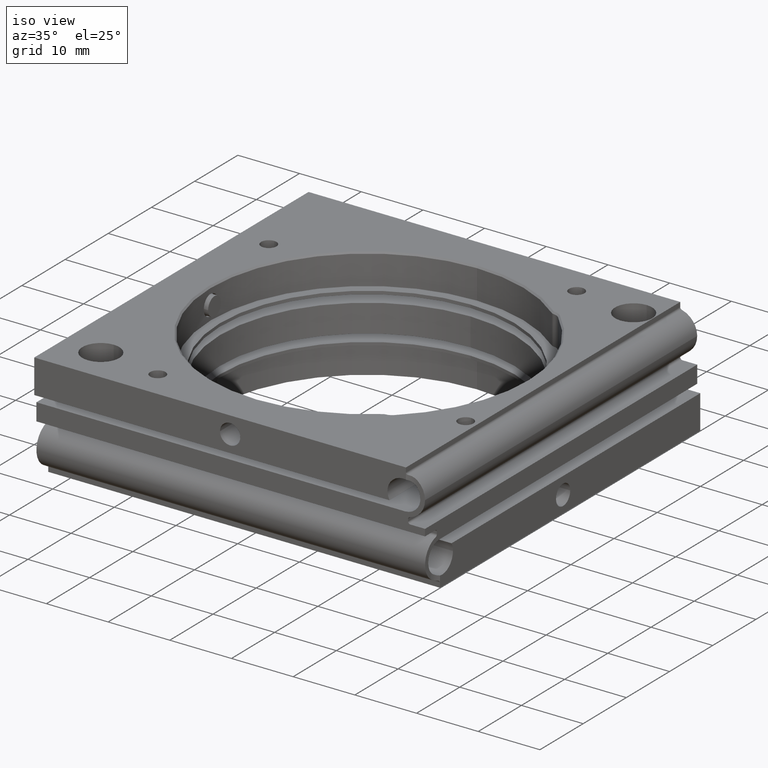
[diagram: clean part render]
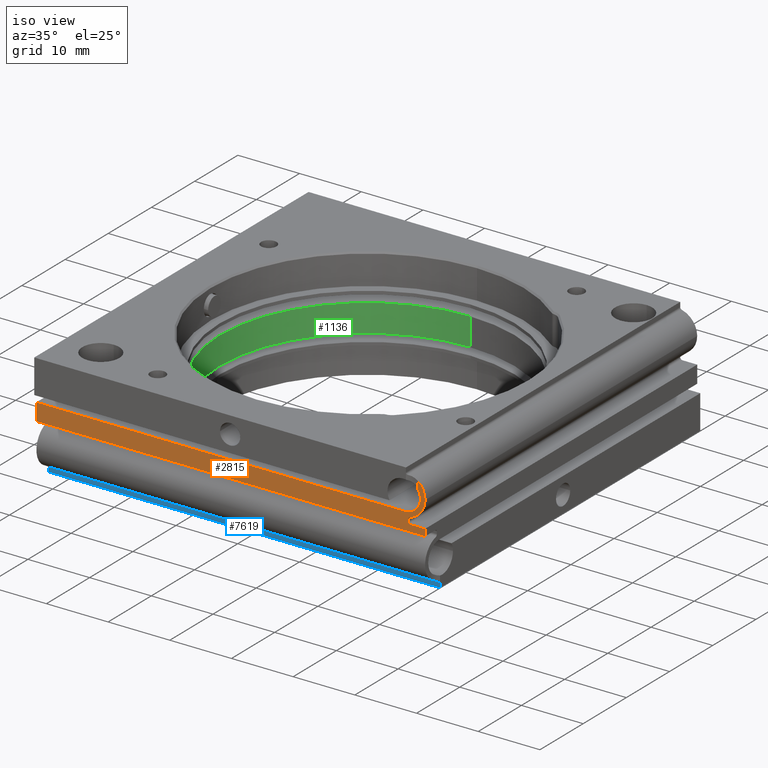
[diagram: same view with three faces highlighted in distinct colors, each labeled with its STEP entity id]
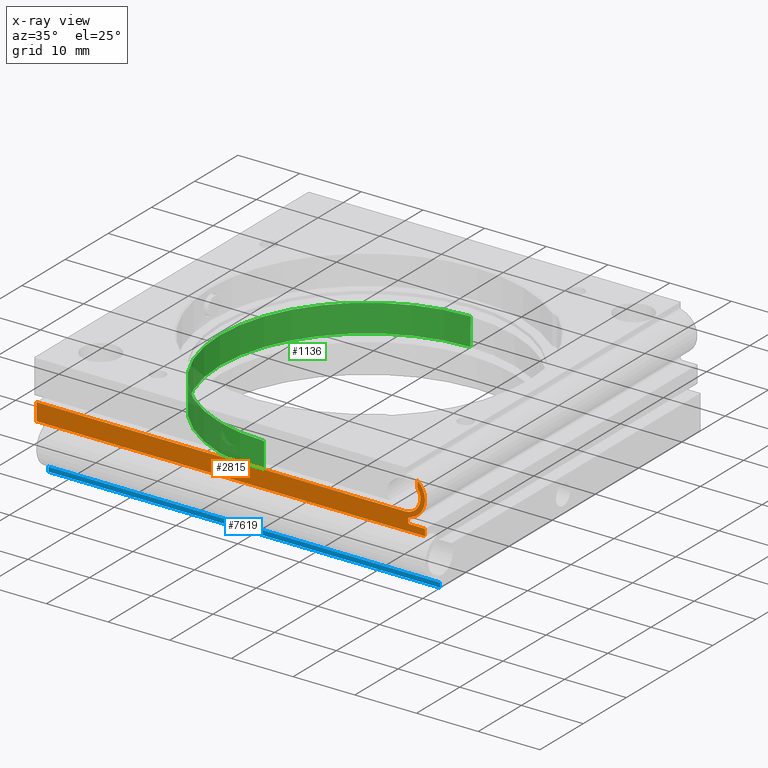
[diagram: x-ray of the same camera — body ghosted, the three highlighted faces saturated]
A machine part, iso view with three faces highlighted in distinct colors.
The next image is the same camera in x-ray (body ghosted, the three faces saturated) — at least one of them is partly hidden behind the body in this view.
Their STEP definitions:

[orange] entity #2815 — the highlighted planar face has unit normal (0, 1, 0).
#16 = DIRECTION ( 'NONE',  ( -1.000000000000000000, 1.665334536937734811E-16, 0.000000000000000000 ) ) ;
#143 = CARTESIAN_POINT ( 'NONE',  ( 28.85000000000001918, -31.24999999999998579, 0.8999999999999998002 ) ) ;
#270 = EDGE_CURVE ( 'NONE', #3364, #8082, #5874, .T. ) ;
#397 = VERTEX_POINT ( 'NONE', #4612 ) ;
#479 = ORIENTED_EDGE ( 'NONE', *, *, #9227, .F. ) ;
#482 = DIRECTION ( 'NONE',  ( 3.835514583104628497E-17, -1.000000000000000000, 5.551115123125782086E-17 ) ) ;
#670 = EDGE_CURVE ( 'NONE', #6175, #3364, #9756, .T. ) ;
#728 = VERTEX_POINT ( 'NONE', #2237 ) ;
#771 = VECTOR ( 'NONE', #3716, 1000.000000000000000 ) ;
#961 = CARTESIAN_POINT ( 'NONE',  ( -31.75000000000000711, -31.24999999999999289, 8.999999999999998224 ) ) ;
#969 = EDGE_CURVE ( 'NONE', #4498, #397, #7934, .T. ) ;
#978 = AXIS2_PLACEMENT_3D ( 'NONE', #6740, #9114, #9913 ) ;
#1087 = CARTESIAN_POINT ( 'NONE',  ( 28.76736111111112493, -31.24999999999998579, 1.591890292413147279 ) ) ;
#1276 = ORIENTED_EDGE ( 'NONE', *, *, #670, .T. ) ;
#1315 = ORIENTED_EDGE ( 'NONE', *, *, #969, .T. ) ;
#1316 = CARTESIAN_POINT ( 'NONE',  ( 28.50000000000001776, -31.24999999999998579, 1.251786170057640257 ) ) ;
#1397 = CARTESIAN_POINT ( 'NONE',  ( 28.00000000000001421, -31.24999999999998579, 4.750000000000000888 ) ) ;
#1480 = DIRECTION ( 'NONE',  ( 1.665334536937734811E-16, 1.000000000000000000, 7.792911615157351922E-17 ) ) ;
#1490 = LINE ( 'NONE', #2260, #6430 ) ;
#1508 = EDGE_CURVE ( 'NONE', #728, #6000, #6603, .T. ) ;
#1848 = CARTESIAN_POINT ( 'NONE',  ( 28.00000000000001066, -31.25000000000000000, 2.250000000000000888 ) ) ;
#1936 = LINE ( 'NONE', #9606, #9973 ) ;
#1964 = CARTESIAN_POINT ( 'NONE',  ( 30.00000000000001776, -31.25000000000000000, 6.249999999999997335 ) ) ;
#2036 = CARTESIAN_POINT ( 'NONE',  ( 31.25000000000001421, -31.24999999999998579, 4.749999999999999112 ) ) ;
#2110 = DIRECTION ( 'NONE',  ( 9.823725385216690060E-17, 1.000000000000000000, -5.551115123125782086E-17 ) ) ;
#2133 = CARTESIAN_POINT ( 'NONE',  ( 28.50000000000001421, -31.24999999999998579, 1.538691855333715441 ) ) ;
#2237 = CARTESIAN_POINT ( 'NONE',  ( 30.00000000000001776, -31.25000000000000000, 7.311737691489899049 ) ) ;
#2260 = CARTESIAN_POINT ( 'NONE',  ( 31.74999999999999289, -31.24999999999999645, 0.5499999999999949374 ) ) ;
#2404 = PLANE ( 'NONE',  #3484 ) ;
#2569 = LINE ( 'NONE', #1848, #9472 ) ;
#2641 = VECTOR ( 'NONE', #2691, 1000.000000000000000 ) ;
#2691 = DIRECTION ( 'NONE',  ( 9.244463733058732095E-33, -5.551115123125781470E-17, -1.000000000000000000 ) ) ;
#2815 = ADVANCED_FACE ( 'NONE', ( #6275 ), #2404, .F. ) ;
#2854 = CARTESIAN_POINT ( 'NONE',  ( 31.74999999999999289, -31.24999999999999289, -0.5499999999999949374 ) ) ;
#2876 = DIRECTION ( 'NONE',  ( 0.000000000000000000, 0.000000000000000000, 1.000000000000000000 ) ) ;
#3364 = VERTEX_POINT ( 'NONE', #1316 ) ;
#3367 = VERTEX_POINT ( 'NONE', #9200 ) ;
#3424 = CARTESIAN_POINT ( 'NONE',  ( 28.00000000000001421, -31.24999999999998579, 4.750000000000000888 ) ) ;
#3463 = EDGE_CURVE ( 'NONE', #5842, #6175, #3908, .T. ) ;
#3484 = AXIS2_PLACEMENT_3D ( 'NONE', #8554, #1480, #16 ) ;
#3594 = ORIENTED_EDGE ( 'NONE', *, *, #7974, .T. ) ;
#3619 = DIRECTION ( 'NONE',  ( 9.823725385216690060E-17, 1.000000000000000000, -5.551115123125782086E-17 ) ) ;
#3649 = CARTESIAN_POINT ( 'NONE',  ( 28.00000000000001066, -31.25000000000000000, 4.750000000000000888 ) ) ;
#3716 = DIRECTION ( 'NONE',  ( -1.000000000000000000, 1.665334536937734811E-16, 0.000000000000000000 ) ) ;
#3865 = DIRECTION ( 'NONE',  ( 9.823725385216690060E-17, 1.000000000000000000, -5.551115123125782086E-17 ) ) ;
#3908 = CIRCLE ( 'NONE', #9739, 0.3499999999999996447 ) ;
#4163 = ORIENTED_EDGE ( 'NONE', *, *, #3463, .T. ) ;
#4328 = CARTESIAN_POINT ( 'NONE',  ( -31.75000000000000711, -31.25000000000000000, 2.250000000000000444 ) ) ;
#4344 = EDGE_CURVE ( 'NONE', #8702, #397, #5958, .T. ) ;
#4498 = VERTEX_POINT ( 'NONE', #4328 ) ;
#4523 = DIRECTION ( 'NONE',  ( 1.000000000000000000, 0.000000000000000000, -8.006416042969880035E-16 ) ) ;
#4542 = AXIS2_PLACEMENT_3D ( 'NONE', #1397, #2110, #4523 ) ;
#4612 = CARTESIAN_POINT ( 'NONE',  ( -31.75000000000000711, -31.24999999999998934, -0.5499999999999972689 ) ) ;
#4622 = DIRECTION ( 'NONE',  ( 1.000000000000000000, -1.665334536937734811E-16, -0.000000000000000000 ) ) ;
#4805 = ORIENTED_EDGE ( 'NONE', *, *, #6138, .F. ) ;
#4873 = DIRECTION ( 'NONE',  ( -1.000000000000000000, -5.131708243377014121E-49, -9.244463733058732095E-33 ) ) ;
#4974 = EDGE_CURVE ( 'NONE', #3367, #6000, #5841, .T. ) ;
#5080 = VECTOR ( 'NONE', #5113, 1000.000000000000000 ) ;
#5113 = DIRECTION ( 'NONE',  ( -1.469772678818983171E-32, 1.443864317541198129E-48, 1.000000000000000000 ) ) ;
#5246 = EDGE_CURVE ( 'NONE', #728, #9743, #9552, .T. ) ;
#5403 = CARTESIAN_POINT ( 'NONE',  ( 31.24999999999999645, -31.24999999999998934, 0.5499999999999967137 ) ) ;
#5675 = AXIS2_PLACEMENT_3D ( 'NONE', #3649, #482, #2876 ) ;
#5841 = CIRCLE ( 'NONE', #5675, 2.500000000000002220 ) ;
#5842 = VERTEX_POINT ( 'NONE', #6855 ) ;
#5874 = CIRCLE ( 'NONE', #978, 0.3499999999999996447 ) ;
#5919 = ORIENTED_EDGE ( 'NONE', *, *, #9764, .T. ) ;
#5958 = LINE ( 'NONE', #2854, #771 ) ;
#6000 = VERTEX_POINT ( 'NONE', #1964 ) ;
#6138 = EDGE_CURVE ( 'NONE', #9743, #8082, #9388, .T. ) ;
#6175 = VERTEX_POINT ( 'NONE', #9923 ) ;
#6275 = FACE_OUTER_BOUND ( 'NONE', #6917, .T. ) ;
#6430 = VECTOR ( 'NONE', #4622, 1000.000000000000000 ) ;
#6603 = LINE ( 'NONE', #9683, #2641 ) ;
#6668 = DIRECTION ( 'NONE',  ( 1.000000000000000000, 0.000000000000000000, 7.205774438672891736E-15 ) ) ;
#6711 = ORIENTED_EDGE ( 'NONE', *, *, #5246, .F. ) ;
#6740 = CARTESIAN_POINT ( 'NONE',  ( 28.85000000000001918, -31.24999999999998579, 1.251786170057640257 ) ) ;
#6855 = CARTESIAN_POINT ( 'NONE',  ( 28.85000000000001563, -31.24999999999999289, 0.5499999999999961586 ) ) ;
#6861 = ORIENTED_EDGE ( 'NONE', *, *, #1508, .T. ) ;
#6917 = EDGE_LOOP ( 'NONE', ( #5919, #479, #4163, #1276, #7381, #4805, #6711, #6861, #7145, #3594, #1315, #8271 ) ) ;
#6921 = CARTESIAN_POINT ( 'NONE',  ( 31.24999999999998934, -31.24999999999998934, -0.5499999999999961586 ) ) ;
#7019 = VECTOR ( 'NONE', #8693, 1000.000000000000000 ) ;
#7145 = ORIENTED_EDGE ( 'NONE', *, *, #4974, .F. ) ;
#7381 = ORIENTED_EDGE ( 'NONE', *, *, #270, .T. ) ;
#7934 = LINE ( 'NONE', #961, #7019 ) ;
#7974 = EDGE_CURVE ( 'NONE', #3367, #4498, #2569, .T. ) ;
#8082 = VERTEX_POINT ( 'NONE', #1087 ) ;
#8271 = ORIENTED_EDGE ( 'NONE', *, *, #4344, .F. ) ;
#8480 = DIRECTION ( 'NONE',  ( -1.000000000000000000, 0.000000000000000000, 0.000000000000000000 ) ) ;
#8554 = CARTESIAN_POINT ( 'NONE',  ( 31.74999999999999289, -31.25000000000000000, 67.00196847342608919 ) ) ;
#8693 = DIRECTION ( 'NONE',  ( 1.848892746611746419E-32, -3.079024946026209384E-48, -1.000000000000000000 ) ) ;
#8694 = VERTEX_POINT ( 'NONE', #5403 ) ;
#8702 = VERTEX_POINT ( 'NONE', #6921 ) ;
#9114 = DIRECTION ( 'NONE',  ( 9.823725385216690060E-17, 1.000000000000000000, -5.551115123125782086E-17 ) ) ;
#9200 = CARTESIAN_POINT ( 'NONE',  ( 28.00000000000001066, -31.25000000000000000, 2.250000000000000888 ) ) ;
#9227 = EDGE_CURVE ( 'NONE', #5842, #8694, #1490, .T. ) ;
#9388 = CIRCLE ( 'NONE', #4542, 3.249999999999999556 ) ;
#9472 = VECTOR ( 'NONE', #4873, 1000.000000000000000 ) ;
#9552 = CIRCLE ( 'NONE', #10030, 3.249999999999999556 ) ;
#9606 = CARTESIAN_POINT ( 'NONE',  ( 31.25000000000000000, -31.24999999999997868, -66.50198409574097980 ) ) ;
#9658 = DIRECTION ( 'NONE',  ( -1.000802005371236483E-16, 0.000000000000000000, 1.000000000000000000 ) ) ;
#9683 = CARTESIAN_POINT ( 'NONE',  ( 30.00000000000001776, -31.25000000000000000, 9.000000000000003553 ) ) ;
#9739 = AXIS2_PLACEMENT_3D ( 'NONE', #143, #3865, #8480 ) ;
#9743 = VERTEX_POINT ( 'NONE', #2036 ) ;
#9756 = LINE ( 'NONE', #2133, #5080 ) ;
#9764 = EDGE_CURVE ( 'NONE', #8702, #8694, #1936, .T. ) ;
#9913 = DIRECTION ( 'NONE',  ( 1.000000000000000000, 0.000000000000000000, 2.478176394252584099E-15 ) ) ;
#9923 = CARTESIAN_POINT ( 'NONE',  ( 28.50000000000001776, -31.24999999999998579, 0.8999999999999998002 ) ) ;
#9973 = VECTOR ( 'NONE', #9658, 1000.000000000000000 ) ;
#10030 = AXIS2_PLACEMENT_3D ( 'NONE', #3424, #3619, #6668 ) ;

[blue] entity #7619 — the highlighted planar face has unit normal (0, 1, -0).
#89 = DIRECTION ( 'NONE',  ( 1.000000000000000000, -5.551115123125782702E-17, -0.000000000000000000 ) ) ;
#185 = CARTESIAN_POINT ( 'NONE',  ( -31.75000000000000711, -28.50000000000000000, -8.248213829942356412 ) ) ;
#363 = VERTEX_POINT ( 'NONE', #571 ) ;
#554 = LINE ( 'NONE', #6111, #8027 ) ;
#571 = CARTESIAN_POINT ( 'NONE',  ( -31.75000000000000711, -28.50000000000000000, -8.248213829942356412 ) ) ;
#897 = EDGE_CURVE ( 'NONE', #9127, #363, #4181, .T. ) ;
#1154 = DIRECTION ( 'NONE',  ( -1.848892746611746419E-32, 3.079024946026209384E-48, 1.000000000000000000 ) ) ;
#1444 = EDGE_CURVE ( 'NONE', #6529, #9336, #5943, .T. ) ;
#1500 = DIRECTION ( 'NONE',  ( -1.000000000000000000, 5.551115123125782702E-17, 0.000000000000000000 ) ) ;
#1640 = EDGE_LOOP ( 'NONE', ( #6276, #9207, #8254, #5639 ) ) ;
#2324 = PLANE ( 'NONE',  #6227 ) ;
#2477 = VECTOR ( 'NONE', #1154, 1000.000000000000000 ) ;
#3209 = DIRECTION ( 'NONE',  ( 3.081487911019576681E-33, 5.551115123125781470E-17, 1.000000000000000000 ) ) ;
#3574 = VECTOR ( 'NONE', #89, 1000.000000000000000 ) ;
#3957 = CARTESIAN_POINT ( 'NONE',  ( -31.75000000000000711, -28.50000000000000000, -7.961308144666279674 ) ) ;
#4101 = CARTESIAN_POINT ( 'NONE',  ( 31.74999999999999289, -28.50000000000000711, -8.248213829942358188 ) ) ;
#4181 = LINE ( 'NONE', #6313, #9916 ) ;
#4321 = CARTESIAN_POINT ( 'NONE',  ( 31.75000000000000000, -28.50000000000001066, 8.999999999999998224 ) ) ;
#5639 = ORIENTED_EDGE ( 'NONE', *, *, #1444, .T. ) ;
#5850 = EDGE_CURVE ( 'NONE', #363, #9336, #9937, .T. ) ;
#5943 = LINE ( 'NONE', #4321, #2477 ) ;
#6111 = CARTESIAN_POINT ( 'NONE',  ( 8.320017359752857790E-32, -28.50000000000000000, -9.000000000000000000 ) ) ;
#6158 = DIRECTION ( 'NONE',  ( 1.000000000000000000, 5.131708243377014121E-49, 9.244463733058732095E-33 ) ) ;
#6193 = FACE_OUTER_BOUND ( 'NONE', #1640, .T. ) ;
#6227 = AXIS2_PLACEMENT_3D ( 'NONE', #3957, #9987, #1500 ) ;
#6276 = ORIENTED_EDGE ( 'NONE', *, *, #5850, .F. ) ;
#6313 = CARTESIAN_POINT ( 'NONE',  ( -31.75000000000000711, -28.50000000000000000, -7.961308144666279674 ) ) ;
#6497 = CARTESIAN_POINT ( 'NONE',  ( 31.75000000000000000, -28.50000000000000000, -9.000000000000000000 ) ) ;
#6529 = VERTEX_POINT ( 'NONE', #6497 ) ;
#7619 = ADVANCED_FACE ( 'NONE', ( #6193 ), #2324, .F. ) ;
#8027 = VECTOR ( 'NONE', #6158, 1000.000000000000000 ) ;
#8254 = ORIENTED_EDGE ( 'NONE', *, *, #8738, .T. ) ;
#8614 = CARTESIAN_POINT ( 'NONE',  ( -31.75000000000000000, -28.50000000000000000, -8.999999999999998224 ) ) ;
#8738 = EDGE_CURVE ( 'NONE', #9127, #6529, #554, .T. ) ;
#9127 = VERTEX_POINT ( 'NONE', #8614 ) ;
#9207 = ORIENTED_EDGE ( 'NONE', *, *, #897, .F. ) ;
#9336 = VERTEX_POINT ( 'NONE', #4101 ) ;
#9916 = VECTOR ( 'NONE', #3209, 1000.000000000000000 ) ;
#9937 = LINE ( 'NONE', #185, #3574 ) ;
#9987 = DIRECTION ( 'NONE',  ( 5.551115123125782702E-17, 1.000000000000000000, -5.551115123125781470E-17 ) ) ;

[green] entity #1136 — the highlighted cylindrical surface (partial cylindrical patch) has radius 23.9 mm, axis along (-0, 0, 1).
#33 = AXIS2_PLACEMENT_3D ( 'NONE', #1164, #8224, #1257 ) ;
#46 = EDGE_CURVE ( 'NONE', #8112, #7027, #127, .T. ) ;
#127 = LINE ( 'NONE', #5482, #7319 ) ;
#323 = VERTEX_POINT ( 'NONE', #473 ) ;
#473 = CARTESIAN_POINT ( 'NONE',  ( -2.080004339938213353E-32, -23.89999999999999858, 2.250000000000000000 ) ) ;
#573 = VERTEX_POINT ( 'NONE', #3428 ) ;
#851 = CIRCLE ( 'NONE', #8486, 23.89999999999999858 ) ;
#1136 = ADVANCED_FACE ( 'NONE', ( #7370 ), #7461, .F. ) ;
#1164 = CARTESIAN_POINT ( 'NONE',  ( 8.320017359752856696E-32, -4.996003610813202460E-16, -8.999999999999998224 ) ) ;
#1257 = DIRECTION ( 'NONE',  ( 0.000000000000000000, -1.000000000000000000, 7.258257221660281024E-17 ) ) ;
#1772 = EDGE_CURVE ( 'NONE', #7027, #323, #4617, .T. ) ;
#2818 = LINE ( 'NONE', #8300, #3343 ) ;
#3233 = DIRECTION ( 'NONE',  ( -9.244463733058732095E-33, 5.551115123125781470E-17, 1.000000000000000000 ) ) ;
#3343 = VECTOR ( 'NONE', #6023, 1000.000000000000000 ) ;
#3375 = CARTESIAN_POINT ( 'NONE',  ( -2.080004339938213353E-32, 1.249000902703300368E-16, 2.249999999999998668 ) ) ;
#3428 = CARTESIAN_POINT ( 'NONE',  ( 2.080004339938214448E-32, -23.89999999999999858, -2.249999999999998224 ) ) ;
#3986 = ORIENTED_EDGE ( 'NONE', *, *, #1772, .T. ) ;
#4042 = CARTESIAN_POINT ( 'NONE',  ( 2.926905849962173749E-15, 23.89999999999999858, 2.249999999999997335 ) ) ;
#4062 = ORIENTED_EDGE ( 'NONE', *, *, #7142, .F. ) ;
#4617 = CIRCLE ( 'NONE', #7197, 23.89999999999999858 ) ;
#5072 = CARTESIAN_POINT ( 'NONE',  ( 2.926905849962173749E-15, 23.89999999999999858, -2.250000000000000888 ) ) ;
#5482 = CARTESIAN_POINT ( 'NONE',  ( 2.926905849962173749E-15, 23.89999999999999858, -9.000000000000000000 ) ) ;
#5876 = CARTESIAN_POINT ( 'NONE',  ( 2.080004339938214448E-32, -1.249000902703300861E-16, -2.249999999999999556 ) ) ;
#5964 = ORIENTED_EDGE ( 'NONE', *, *, #46, .T. ) ;
#6023 = DIRECTION ( 'NONE',  ( -9.244463733058732095E-33, 5.551115123125781470E-17, 1.000000000000000000 ) ) ;
#6484 = DIRECTION ( 'NONE',  ( -9.244463733058732095E-33, 5.551115123125781470E-17, 1.000000000000000000 ) ) ;
#6585 = DIRECTION ( 'NONE',  ( 0.000000000000000000, -1.000000000000000000, 5.443692916245211076E-17 ) ) ;
#6955 = EDGE_LOOP ( 'NONE', ( #4062, #5964, #3986, #7494 ) ) ;
#7027 = VERTEX_POINT ( 'NONE', #4042 ) ;
#7142 = EDGE_CURVE ( 'NONE', #8112, #573, #851, .T. ) ;
#7197 = AXIS2_PLACEMENT_3D ( 'NONE', #3375, #6484, #9563 ) ;
#7319 = VECTOR ( 'NONE', #3233, 1000.000000000000000 ) ;
#7370 = FACE_OUTER_BOUND ( 'NONE', #6955, .T. ) ;
#7461 = CYLINDRICAL_SURFACE ( 'NONE', #33, 23.89999999999999858 ) ;
#7494 = ORIENTED_EDGE ( 'NONE', *, *, #9420, .F. ) ;
#8099 = DIRECTION ( 'NONE',  ( -9.244463733058732095E-33, 5.551115123125781470E-17, 1.000000000000000000 ) ) ;
#8112 = VERTEX_POINT ( 'NONE', #5072 ) ;
#8224 = DIRECTION ( 'NONE',  ( -9.244463733058732095E-33, 5.551115123125781470E-17, 1.000000000000000000 ) ) ;
#8300 = CARTESIAN_POINT ( 'NONE',  ( 8.320017359752856696E-32, -23.89999999999999858, -8.999999999999996447 ) ) ;
#8486 = AXIS2_PLACEMENT_3D ( 'NONE', #5876, #8099, #6585 ) ;
#9420 = EDGE_CURVE ( 'NONE', #573, #323, #2818, .T. ) ;
#9563 = DIRECTION ( 'NONE',  ( 0.000000000000000000, -1.000000000000000000, 5.443692916245211076E-17 ) ) ;